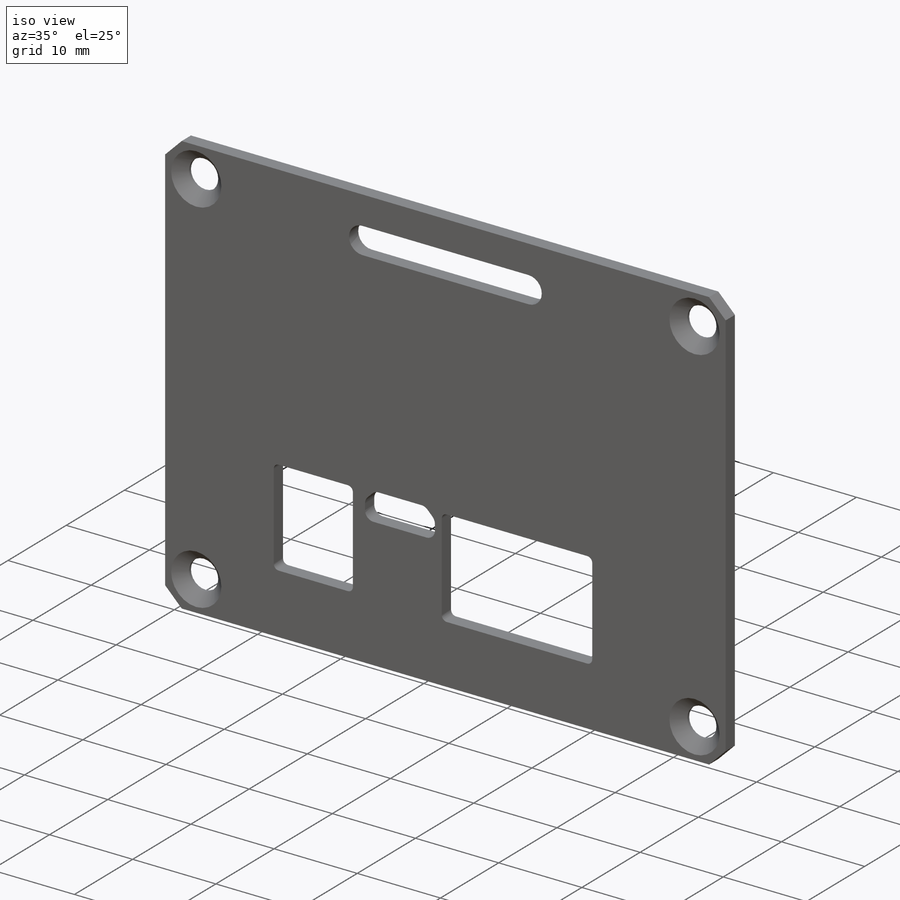
[diagram: iso view]
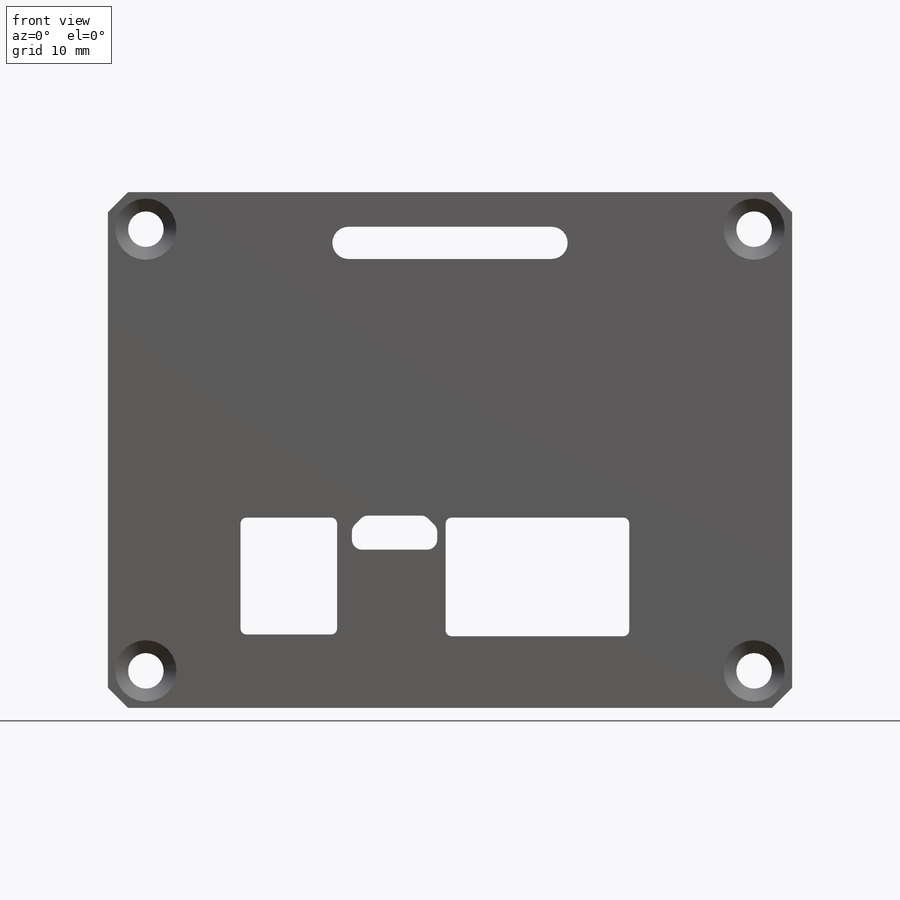
[diagram: front view]
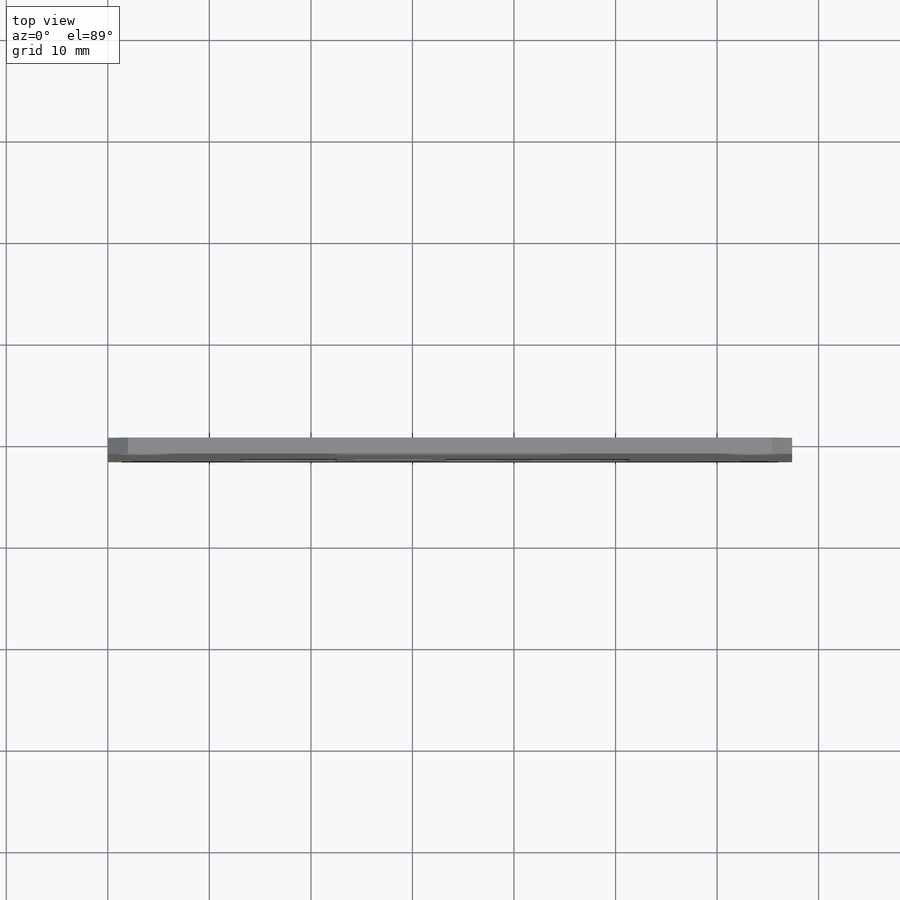
[diagram: top view]
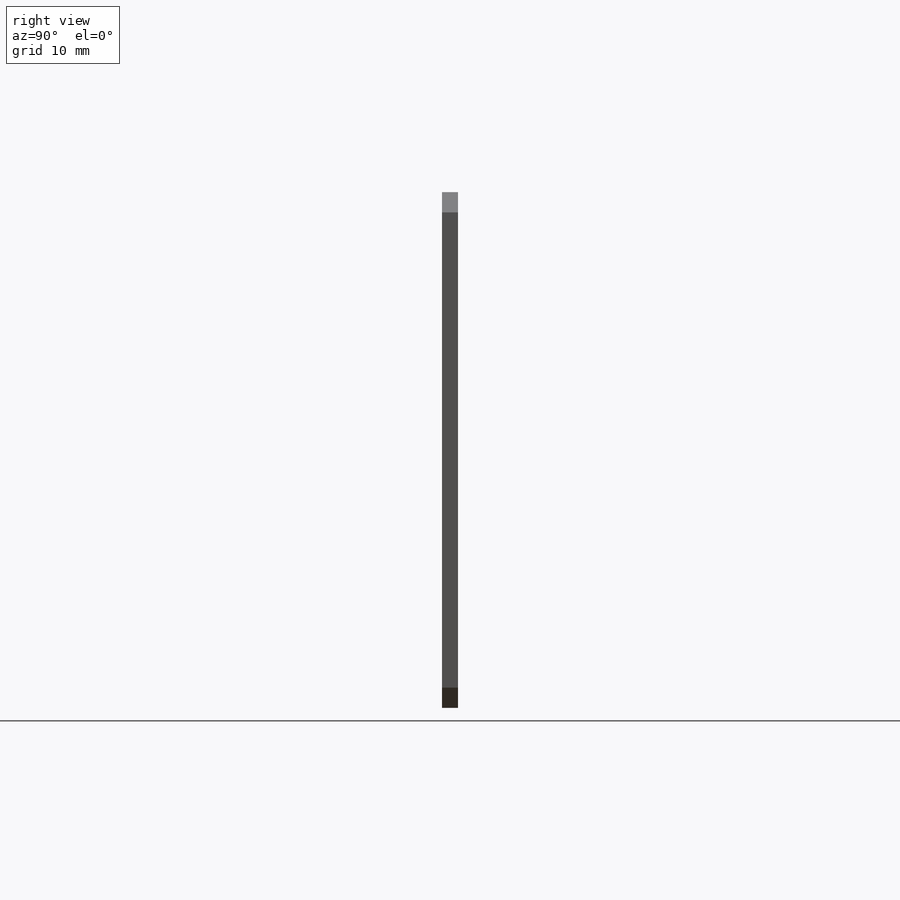
[diagram: right view]
SOLIDWORKS PART (.sldprt)
format: sldprt  version: not decoded by parser v0  size: 559,616 bytes
history: native  units: mm
features: sketch x5, cut_extrude x4, chamfer x2, material x1, extrude x1 (+13 scaffold rows collapsed)
feature tree (26):
  scaffold x13  (default folders/planes/origin — collapsed)
  material  "Material <not specified>"
  sketch  "Sketch1"  dims[D1=67.4mm D2=50.8mm]
  extrude  "Boss-Extrude1"  Depth=1.5875mm
  chamfer  "Chamfer1"  Distance=2mm Angle=45deg
  sketch  "Sketch3"  dims[D1=3.5mm D2=82.0mm D3=43.5mm]
  cut_extrude  "Cut-Extrude2"  [1 undecoded]
  chamfer  "Chamfer2"  Distance=1.27mm Angle=45deg
  sketch  "Sketch5"  dims[D2=1.5875mm D1=20.0mm D3=5.0mm]
  cut_extrude  "Cut-Extrude4"  [1 undecoded]
  sketch  "Sketch2"  dims[c1.D11=0.75mm c1.D12=0.75mm c1.D14=~0.79375mm c1.D15=~0.79375mm c1.D16=~0.79375mm c1.D17=~0.79375mm c1.D18=~0.79375mm c1.D19=~0.79375mm c1.D20=~0.79375mm c1.D21=~0.595313mm c2.D14=~0.595313mm c2.D1=0.254mm c2.D2=0.254mm c2.D3=0.254mm c2.D4=0.254mm c2.D5=0.254mm c2.D6=0.254mm c2.D7=0.254mm c2.D8=0.254mm c2.D9=~0.198438mm c2.D10=~0.198438mm c3.D9=2.85mm c3.D10=3.95mm c3.D12=~0.853553mm c4.D12=135.0deg c4.D13=~2.596447mm c4.D4=0.254mm c4.D15=~0.853553mm c5.D15=135.0deg c5.D9=10.0mm c5.D14=0.254mm]
  cut_extrude  "Cut-Extrude1"  [1 undecoded]
  sketch  "Sketch6"  dims[c1.D2=~0.79375mm c1.D1=61.4875mm c2.D1=45.0deg c2.D3=3.175mm c2.D4=3.175mm c2.D5=1.5mm c2.D6=1.5mm c2.D7=1.5mm c2.D8=1.5mm]
  cut_extrude  "Cut-Extrude5"  [1 undecoded]
decode coverage: 8 of 12 modeling features carry decoded parameters
note: ~ marks probable driven/reference dimensions
note: 4 parameter values undecoded
summary: no parameter record found for 4 features
note: suppression state not decoded; provenance and decode notes live in map.json
